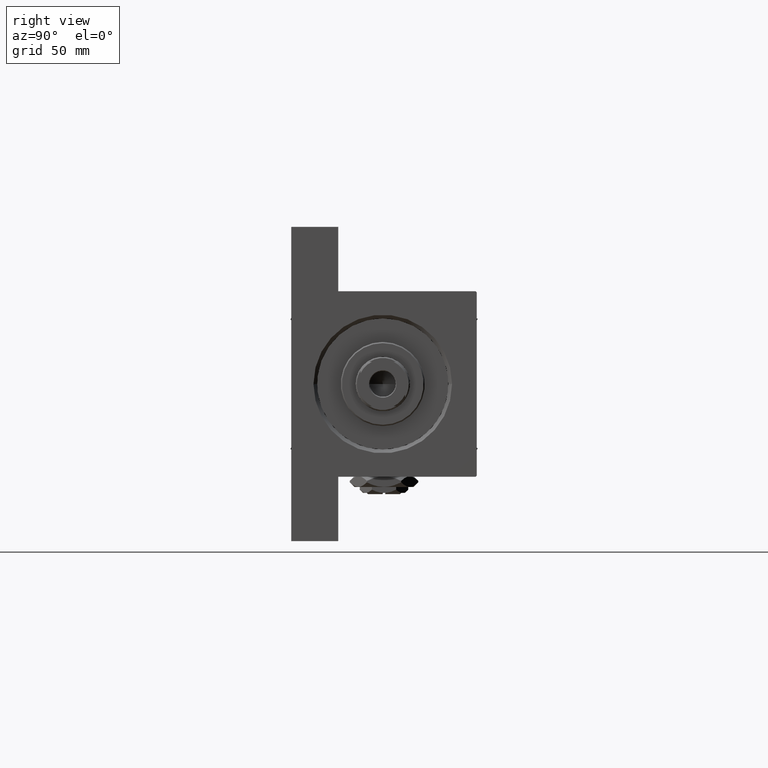
[diagram: clean part render]
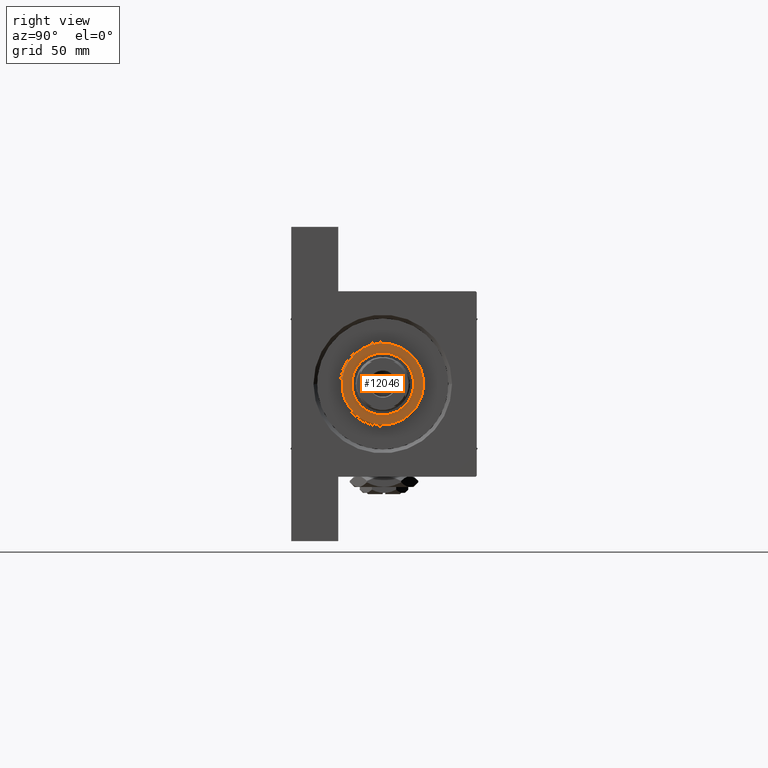
[diagram: same view with one face highlighted and labeled with its STEP entity id]
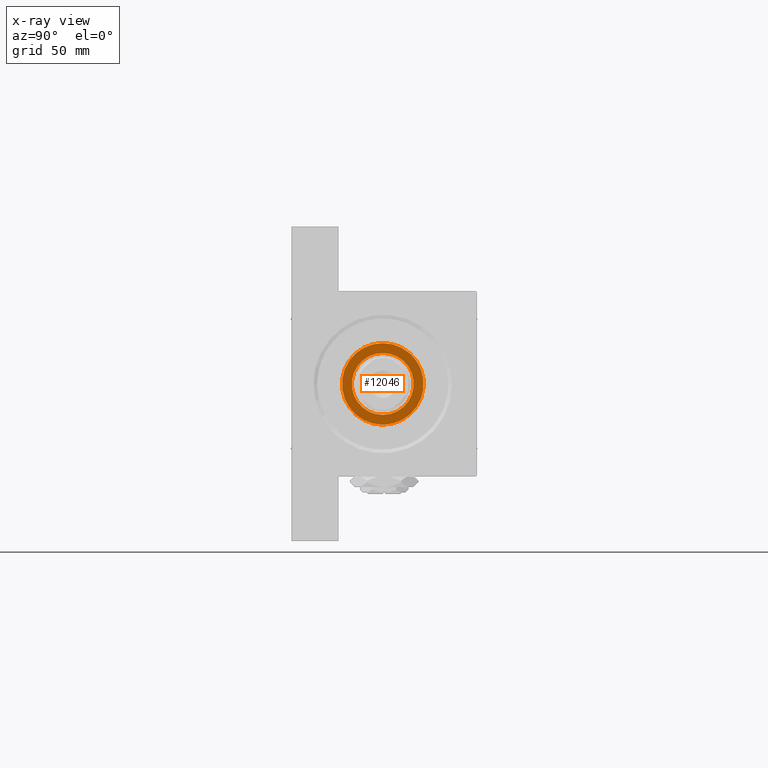
[diagram: x-ray of the same camera — body ghosted, the highlighted face saturated]
A machine part, right view. The second image highlights one B-rep face of the part: STEP entity #12046.
The next image is the same camera in x-ray: the body ghosted, the highlighted face saturated — about 0% of this face is hidden behind the body in this view.
In plain terms, the highlighted planar face has unit normal (1, 0, 0).
Its self-contained STEP definition (entity closure, byte-faithful):
#438 = VERTEX_POINT ( 'NONE', #24581 ) ;
#3724 = CARTESIAN_POINT ( 'NONE',  ( 0.000000000000000000, 0.000000000000000000, 37.69999999999999574 ) ) ;
#3813 = CIRCLE ( 'NONE', #15730, 12.50000000000000000 ) ;
#6970 = CARTESIAN_POINT ( 'NONE',  ( 0.000000000000000000, 0.000000000000000000, 37.69999999999999574 ) ) ;
#9691 = EDGE_LOOP ( 'NONE', ( #38626, #25870 ) ) ;
#9971 = FACE_BOUND ( 'NONE', #9691, .T. ) ;
#10207 = DIRECTION ( 'NONE',  ( 1.000000000000000000, 0.000000000000000000, -0.000000000000000000 ) ) ;
#10258 = CARTESIAN_POINT ( 'NONE',  ( 0.000000000000000000, 0.000000000000000000, 37.69999999999999574 ) ) ;
#11747 = EDGE_CURVE ( 'NONE', #438, #26431, #32609, .T. ) ;
#12046 = ADVANCED_FACE ( 'NONE', ( #9971, #47847 ), #13701, .T. ) ;
#12268 = EDGE_CURVE ( 'NONE', #33315, #37856, #31068, .T. ) ;
#13701 = PLANE ( 'NONE',  #25484 ) ;
#15305 = EDGE_CURVE ( 'NONE', #26431, #438, #31173, .T. ) ;
#15730 = AXIS2_PLACEMENT_3D ( 'NONE', #17992, #43682, #28977 ) ;
#17882 = CARTESIAN_POINT ( 'NONE',  ( -12.50000000000000000, 1.530808498934191521E-15, 37.69999999999999574 ) ) ;
#17992 = CARTESIAN_POINT ( 'NONE',  ( 0.000000000000000000, 0.000000000000000000, 37.69999999999999574 ) ) ;
#18132 = CARTESIAN_POINT ( 'NONE',  ( -16.50000000000000000, 0.000000000000000000, 37.69999999999999574 ) ) ;
#22011 = DIRECTION ( 'NONE',  ( 1.000000000000000000, 0.000000000000000000, 0.000000000000000000 ) ) ;
#24581 = CARTESIAN_POINT ( 'NONE',  ( 16.50000000000000000, 2.051283388571816887E-15, 37.69999999999999574 ) ) ;
#25484 = AXIS2_PLACEMENT_3D ( 'NONE', #6970, #45086, #10207 ) ;
#25870 = ORIENTED_EDGE ( 'NONE', *, *, #42636, .F. ) ;
#26133 = CARTESIAN_POINT ( 'NONE',  ( 12.50000000000000000, 0.000000000000000000, 37.69999999999999574 ) ) ;
#26431 = VERTEX_POINT ( 'NONE', #18132 ) ;
#28977 = DIRECTION ( 'NONE',  ( 1.000000000000000000, 0.000000000000000000, 0.000000000000000000 ) ) ;
#29460 = DIRECTION ( 'NONE',  ( 0.000000000000000000, 0.000000000000000000, 1.000000000000000000 ) ) ;
#29740 = DIRECTION ( 'NONE',  ( 0.000000000000000000, 0.000000000000000000, 1.000000000000000000 ) ) ;
#30359 = AXIS2_PLACEMENT_3D ( 'NONE', #3724, #49297, #45573 ) ;
#31068 = CIRCLE ( 'NONE', #33449, 12.50000000000000000 ) ;
#31173 = CIRCLE ( 'NONE', #30359, 16.50000000000000000 ) ;
#31819 = AXIS2_PLACEMENT_3D ( 'NONE', #10258, #29460, #44649 ) ;
#32212 = ORIENTED_EDGE ( 'NONE', *, *, #15305, .T. ) ;
#32609 = CIRCLE ( 'NONE', #31819, 16.50000000000000000 ) ;
#33315 = VERTEX_POINT ( 'NONE', #26133 ) ;
#33449 = AXIS2_PLACEMENT_3D ( 'NONE', #40458, #29740, #22011 ) ;
#37856 = VERTEX_POINT ( 'NONE', #17882 ) ;
#38626 = ORIENTED_EDGE ( 'NONE', *, *, #12268, .F. ) ;
#39336 = ORIENTED_EDGE ( 'NONE', *, *, #11747, .T. ) ;
#40458 = CARTESIAN_POINT ( 'NONE',  ( 0.000000000000000000, 0.000000000000000000, 37.69999999999999574 ) ) ;
#42636 = EDGE_CURVE ( 'NONE', #37856, #33315, #3813, .T. ) ;
#43682 = DIRECTION ( 'NONE',  ( 0.000000000000000000, 0.000000000000000000, 1.000000000000000000 ) ) ;
#44649 = DIRECTION ( 'NONE',  ( 1.000000000000000000, 0.000000000000000000, 0.000000000000000000 ) ) ;
#45086 = DIRECTION ( 'NONE',  ( 0.000000000000000000, 0.000000000000000000, 1.000000000000000000 ) ) ;
#45573 = DIRECTION ( 'NONE',  ( 1.000000000000000000, 0.000000000000000000, 0.000000000000000000 ) ) ;
#47847 = FACE_OUTER_BOUND ( 'NONE', #48170, .T. ) ;
#48170 = EDGE_LOOP ( 'NONE', ( #32212, #39336 ) ) ;
#49297 = DIRECTION ( 'NONE',  ( 0.000000000000000000, 0.000000000000000000, 1.000000000000000000 ) ) ;